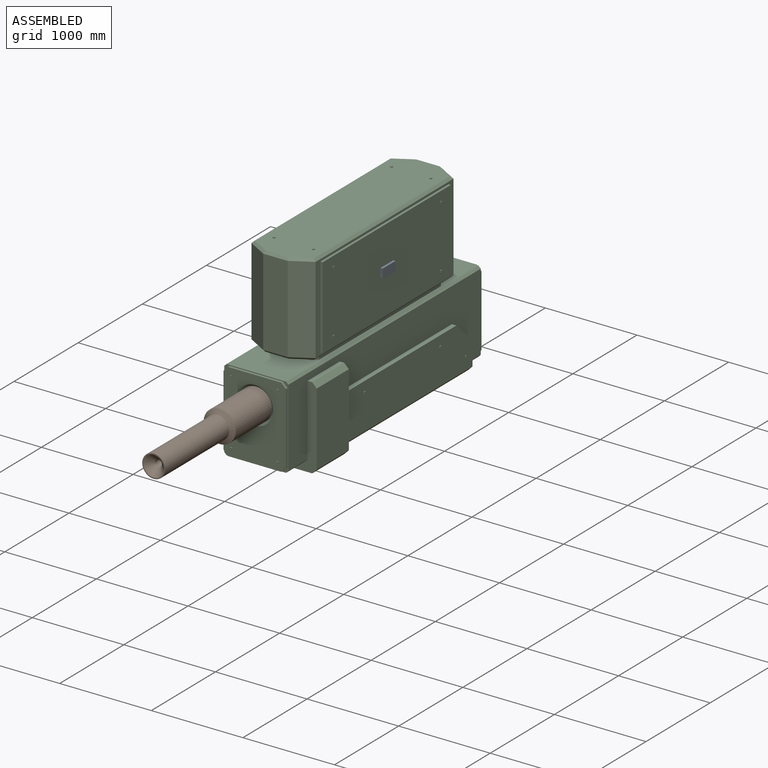
[diagram: assembled view]
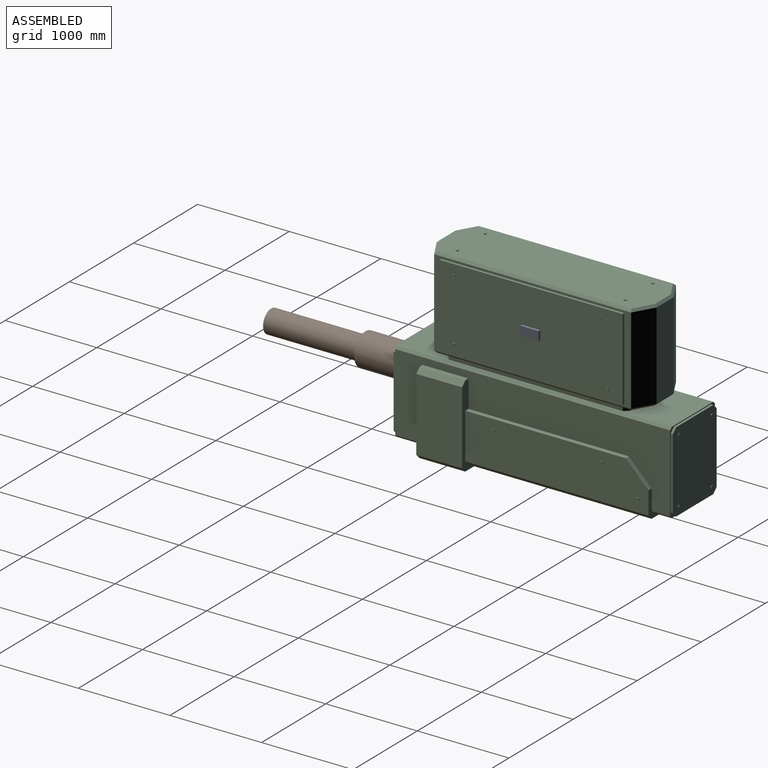
[diagram: assembled view, second angle]
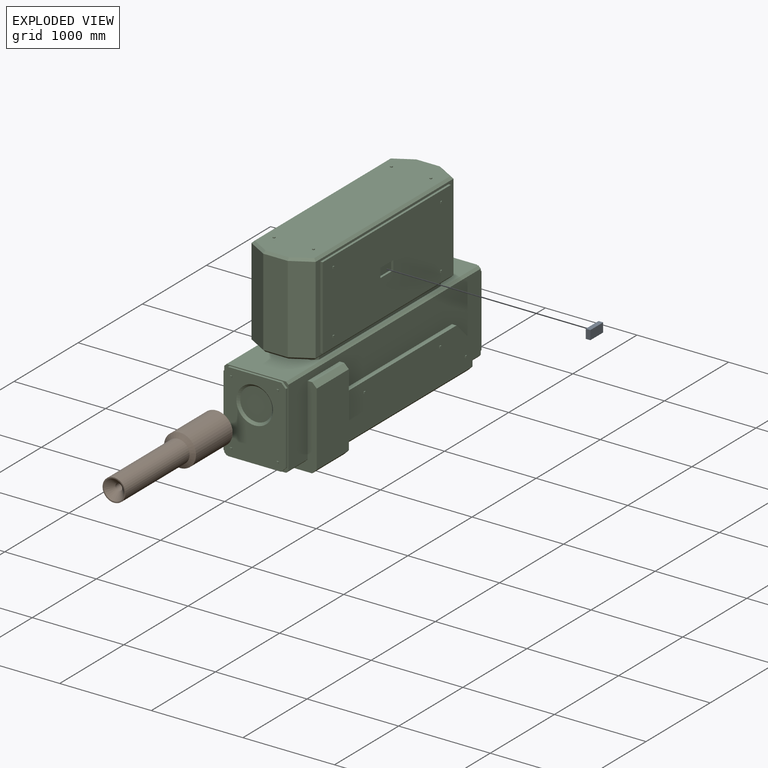
[diagram: exploded view]
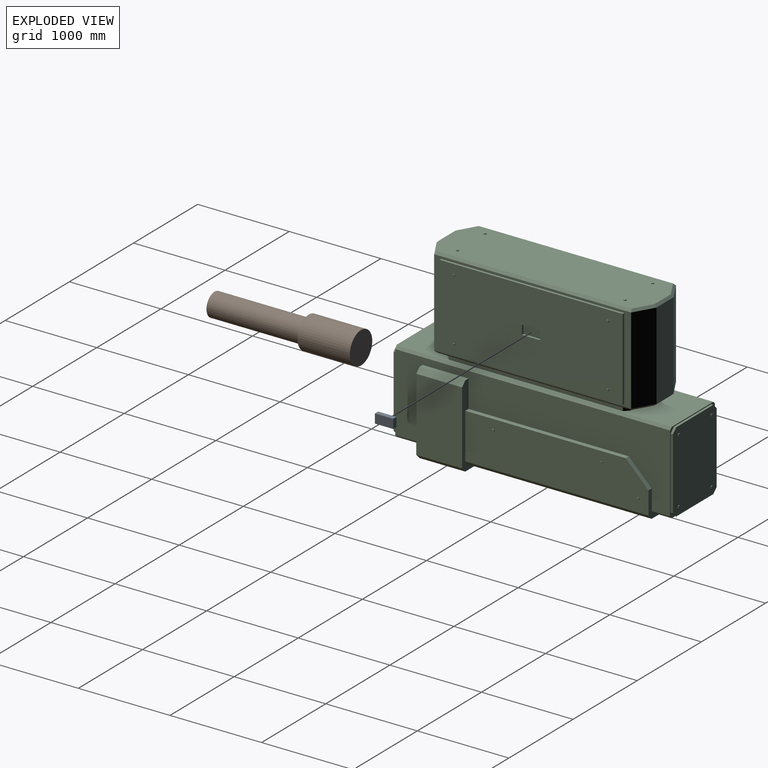
[diagram: exploded view, second angle]
ASSEMBLY  parts=3 mates=2
PART A: 6 faces, bbox 50x200x100 mm
  f0: plane 200x50mm, normal (0,0,1), area 10000mm2, adj f1,f3,f4,f5
  f1: plane 100x50mm, normal (0,-1,0), area 5000mm2, adj f0,f2,f4,f5
  f2: plane 200x50mm, normal (0,0,-1), area 10000mm2, adj f1,f3,f4,f5
  f3: plane 100x50mm, normal (0,1,0), area 5000mm2, adj f0,f2,f4,f5
  f4: plane 200x100mm, normal (1,0,0), area 20000mm2, adj f0,f1,f2,f3
  f5: plane 200x100mm, normal (-1,0,0), area 20000mm2, adj f0,f1,f2,f3
PART B: 8 faces, bbox 350x1600x350 mm
  f0: cylinder r=175mm len=571.13mm, axis (0,1,0), area 627993mm2, adj f1,f4
  f1: plane 350x350mm, normal (0,1,0), area 96211.3mm2, adj f0
  f2: cylinder r=125mm len=1000mm, axis (0,1,0), area 785398.2mm2, adj f3,f4
  f3: plane 250x250mm, normal (0,-1,0), area 9326.6mm2, adj f2,f7
  f4: cone r=125mm half-angle=60deg, axis (0,1,0), area 54414mm2, adj f0,f2
  f5: cylinder r=37.5mm len=425mm, axis (0,-1,0), area 100138.3mm2, adj f6,f7
  f6: plane 75x75mm, normal (0,-1,0), area 4417.9mm2, adj f5
  f7: cone r=37.5mm half-angle=45deg, axis (0,-1,0), area 49982.4mm2, adj f3,f5
PART C: 239 faces, bbox 900x3070x2060 mm
  f0: plane 2000x900mm, normal (1,0,0), area 1778400mm2, adj f145,f146,f147,f148,f149,f150,f151,f152
  f1: plane 900x900mm, normal (0,1,0), area 157500mm2, adj f3,f104,f106,f107,f108,f109,f110,f111
  f2: plane 650x200mm, normal (0,0,-1), area 130000mm2, adj f4,f8,f112,f132
  f3: plane 3000x850mm, normal (-1,0,0), area 1243750mm2, adj f1,f4,f8,f11,f68,f69,f104,f105
  f4: plane 200x25mm, normal (-0.71,0,-0.71), area 7071.1mm2, adj f2,f3,f8,f112
  f5: plane 3000x650mm, normal (0,0,1), area 753000mm2, adj f8,f11,f13,f14,f15,f16,f17,f69
  f6: plane 880x680mm, normal (0,1,0), area 591800mm2, adj f73,f74,f75,f76,f77,f90,f91,f92
  f7: plane 880x680mm, normal (0,-1,0), area 466136.3mm2, adj f70,f71,f72,f78,f79,f80,f81,f82
  f8: plane 900x700mm, normal (0,1,0), area 35350mm2, adj f2,f3,f4,f5,f69,f73,f74,f75
  f9: plane 2350x650mm, normal (0,0,1), area 1480537.3mm2, adj f29,f30,f31,f32,f33,f58,f59,f60
  f10: plane 2000x900mm, normal (-1,0,0), area 1798400mm2, adj f34,f35,f36,f37,f38,f39,f40,f41
  f11: plane 900x700mm, normal (0,-1,0), area 35350mm2, adj f3,f5,f12,f68,f69,f70,f71,f72
  f12: plane 650x300mm, normal (0,0,-1), area 195000mm2, adj f11,f68,f105,f179
  f13: plane 500x60mm, normal (0,1,0), area 26000mm2, adj f5,f16,f18,f100,f103,f134,f207
  f14: plane 1900x50mm, normal (-1,0,0), area 95000mm2, adj f5,f16,f17,f18
  f15: plane 500x60mm, normal (0,-1,0), area 26000mm2, adj f5,f17,f18,f101,f102,f135,f208
  f16: plane 50x50mm, normal (-0.71,0.71,0), area 3535.5mm2, adj f5,f13,f14,f18
  f17: plane 50x50mm, normal (-0.71,-0.71,0), area 3535.5mm2, adj f5,f14,f15,f18
  f18: plane 2350x650mm, normal (0,0,-1), area 287137.3mm2, adj f13,f14,f15,f16,f17,f24,f25,f26
  f19: plane 950x266.99mm, normal (0,1,0), area 253637.9mm2, adj f22,f24,f33,f137
  f20: plane 2150x950mm, normal (-1,0,0), area 242500mm2, adj f22,f23,f27,f31,f34,f35,f36,f37
  f21: plane 950x266.99mm, normal (0,-1,0), area 253637.9mm2, adj f23,f26,f29,f138
  f22: plane 950x216.51mm, normal (-0.5,0.87,0), area 237500mm2, adj f19,f20,f25,f32
  f23: plane 950x216.51mm, normal (-0.5,-0.87,0), area 237500mm2, adj f20,f21,f28,f30
  f24: plane 266.99x25mm, normal (0,0.71,-0.71), area 9202.6mm2, adj f18,f19,f25,f139
  f25: plane 223.21x139.43mm, normal (-0.35,0.61,-0.71), area 8465.3mm2, adj f18,f22,f24,f27
  f26: plane 266.99x25mm, normal (0,-0.71,-0.71), area 9202.6mm2, adj f18,f21,f28,f141
  f27: plane 2150x25mm, normal (-0.71,0,-0.71), area 75503.7mm2, adj f18,f20,f25,f28
  f28: plane 223.21x139.43mm, normal (-0.35,-0.61,-0.71), area 8465.3mm2, adj f18,f23,f26,f27
  f29: plane 266.99x25mm, normal (0,-0.71,0.71), area 9202.6mm2, adj f9,f21,f30,f142
  f30: plane 223.21x139.43mm, normal (-0.35,-0.61,0.71), area 8465.3mm2, adj f9,f23,f29,f31
  f31: plane 2150x25mm, normal (-0.71,0,0.71), area 75503.7mm2, adj f9,f20,f30,f32
  f32: plane 223.21x139.43mm, normal (-0.35,0.61,0.71), area 8465.3mm2, adj f9,f22,f31,f33
  f33: plane 266.99x25mm, normal (0,0.71,0.71), area 9202.6mm2, adj f9,f19,f32,f144
  f34: plane 2000x25mm, normal (0,0,1), area 50000mm2, adj f10,f20,f35,f37
  f35: plane 900x25mm, normal (0,1,0), area 22500mm2, adj f10,f20,f34,f36
  f36: plane 2000x25mm, normal (0,0,-1), area 50000mm2, adj f10,f20,f35,f37
  f37: plane 900x25mm, normal (0,-1,0), area 22500mm2, adj f10,f20,f34,f36
  f38: plane 20x10mm, normal (0,0,1), area 200mm2, adj f10,f39,f41,f42
  f39: plane 20x10mm, normal (0,1,0), area 200mm2, adj f10,f38,f40,f42
  f40: plane 20x10mm, normal (0,0,-1), area 200mm2, adj f10,f39,f41,f42
  f41: plane 20x10mm, normal (0,-1,0), area 200mm2, adj f10,f38,f40,f42
  f42: plane 20x20mm, normal (-1,0,0), area 400mm2, adj f38,f39,f40,f41
  f43: plane 20x10mm, normal (0,0,1), area 200mm2, adj f10,f44,f46,f47
  f44: plane 20x10mm, normal (0,1,0), area 200mm2, adj f10,f43,f45,f47
  f45: plane 20x10mm, normal (0,0,-1), area 200mm2, adj f10,f44,f46,f47
  f46: plane 20x10mm, normal (0,-1,0), area 200mm2, adj f10,f43,f45,f47
  f47: plane 20x20mm, normal (-1,0,0), area 400mm2, adj f43,f44,f45,f46
  f48: plane 20x10mm, normal (0,-1,0), area 200mm2, adj f10,f49,f51,f52
  f49: plane 20x10mm, normal (0,0,1), area 200mm2, adj f10,f48,f50,f52
  f50: plane 20x10mm, normal (0,1,0), area 200mm2, adj f10,f49,f51,f52
  f51: plane 20x10mm, normal (0,0,-1), area 200mm2, adj f10,f48,f50,f52
  f52: plane 20x20mm, normal (-1,0,0), area 400mm2, adj f48,f49,f50,f51
  f53: plane 20x10mm, normal (0,-1,0), area 200mm2, adj f10,f54,f56,f57
  f54: plane 20x10mm, normal (0,0,1), area 200mm2, adj f10,f53,f55,f57
  f55: plane 20x10mm, normal (0,1,0), area 200mm2, adj f10,f54,f56,f57
  f56: plane 20x10mm, normal (0,0,-1), area 200mm2, adj f10,f53,f55,f57
  f57: plane 20x20mm, normal (-1,0,0), area 400mm2, adj f53,f54,f55,f56
  f58: plane 20x10mm, normal (0,1,0), area 200mm2, adj f9,f59,f61,f62
  f59: plane 20x10mm, normal (-1,0,0), area 200mm2, adj f9,f58,f60,f62
  f60: plane 20x10mm, normal (0,-1,0), area 200mm2, adj f9,f59,f61,f62
  f61: plane 20x10mm, normal (1,0,0), area 200mm2, adj f9,f58,f60,f62
  f62: plane 20x20mm, normal (0,0,1), area 400mm2, adj f58,f59,f60,f61
  f63: plane 20x10mm, normal (-1,0,0), area 200mm2, adj f9,f64,f66,f67
  f64: plane 20x10mm, normal (0,-1,0), area 200mm2, adj f9,f63,f65,f67
  f65: plane 20x10mm, normal (1,0,0), area 200mm2, adj f9,f64,f66,f67
  f66: plane 20x10mm, normal (0,1,0), area 200mm2, adj f9,f63,f65,f67
  f67: plane 20x20mm, normal (0,0,1), area 400mm2, adj f63,f64,f65,f66
  f68: plane 300x25mm, normal (-0.71,0,-0.71), area 10606.6mm2, adj f3,f11,f12,f105
  f69: plane 3000x25mm, normal (-0.71,0,0.71), area 106066mm2, adj f3,f5,f8,f11
  f70: plane 780x25mm, normal (-1,0,0), area 19500mm2, adj f7,f11,f78,f79
  f71: plane 580x25mm, normal (0,0,-1), area 14500mm2, adj f7,f11,f78,f185
  f72: plane 580x25mm, normal (0,0,1), area 14500mm2, adj f7,f11,f79,f186
  f73: plane 580x25mm, normal (0,0,1), area 14500mm2, adj f6,f8,f77,f184
  f74: plane 580x25mm, normal (0,0,-1), area 14500mm2, adj f6,f8,f76,f183
  f75: plane 780x25mm, normal (-1,0,0), area 19500mm2, adj f6,f8,f76,f77
  f76: plane 50x50mm, normal (-0.71,0,-0.71), area 1767.8mm2, adj f6,f8,f74,f75
  f77: plane 50x50mm, normal (-0.71,0,0.71), area 1767.8mm2, adj f6,f8,f73,f75
  f78: plane 50x50mm, normal (-0.71,0,-0.71), area 1767.8mm2, adj f7,f11,f70,f71
  f79: plane 50x50mm, normal (-0.71,0,0.71), area 1767.8mm2, adj f7,f11,f70,f72
  f80: plane 20x10mm, normal (0,0,1), area 200mm2, adj f7,f81,f83,f84
  f81: plane 20x10mm, normal (-1,0,0), area 200mm2, adj f7,f80,f82,f84
  f82: plane 20x10mm, normal (0,0,-1), area 200mm2, adj f7,f81,f83,f84
  f83: plane 20x10mm, normal (1,0,0), area 200mm2, adj f7,f80,f82,f84
  f84: plane 20x20mm, normal (0,-1,0), area 400mm2, adj f80,f81,f82,f83
  f85: plane 20x10mm, normal (0,0,1), area 200mm2, adj f7,f86,f88,f89
  f86: plane 20x10mm, normal (-1,0,0), area 200mm2, adj f7,f85,f87,f89
  f87: plane 20x10mm, normal (0,0,-1), area 200mm2, adj f7,f86,f88,f89
  f88: plane 20x10mm, normal (1,0,0), area 200mm2, adj f7,f85,f87,f89
  f89: plane 20x20mm, normal (0,-1,0), area 400mm2, adj f85,f86,f87,f88
  f90: plane 20x10mm, normal (0,0,1), area 200mm2, adj f6,f91,f93,f94
  f91: plane 20x10mm, normal (1,0,0), area 200mm2, adj f6,f90,f92,f94
  f92: plane 20x10mm, normal (0,0,-1), area 200mm2, adj f6,f91,f93,f94
  f93: plane 20x10mm, normal (-1,0,0), area 200mm2, adj f6,f90,f92,f94
  f94: plane 20x20mm, normal (0,1,0), area 400mm2, adj f90,f91,f92,f93
  f95: plane 20x10mm, normal (0,0,1), area 200mm2, adj f6,f96,f98,f99
  f96: plane 20x10mm, normal (1,0,0), area 200mm2, adj f6,f95,f97,f99
  f97: plane 20x10mm, normal (0,0,-1), area 200mm2, adj f6,f96,f98,f99
  f98: plane 20x10mm, normal (-1,0,0), area 200mm2, adj f6,f95,f97,f99
  f99: plane 20x20mm, normal (0,1,0), area 400mm2, adj f95,f96,f97,f98
  f100: plane 10x10mm, normal (1,0,0), area 50mm2, adj f5,f13,f103
  f101: plane 10x10mm, normal (1,0,0), area 50mm2, adj f5,f15,f102
  f102: plane 100x10mm, normal (0,0.71,0.71), area 1414.2mm2, adj f5,f15,f101,f208
  f103: plane 100x10mm, normal (0,-0.71,0.71), area 1414.2mm2, adj f5,f13,f100,f207
  f104: plane 500x50mm, normal (0,0,1), area 25000mm2, adj f1,f3,f105,f109
  f105: plane 900x900mm, normal (0,-1,0), area 245625mm2, adj f3,f12,f68,f104,f106,f107,f108,f109
  f106: plane 800x500mm, normal (0,0,-1), area 400000mm2, adj f1,f105,f108,f211
  f107: plane 800x500mm, normal (-1,0,0), area 400000mm2, adj f1,f105,f108,f109
  f108: plane 500x50mm, normal (-0.71,0,-0.71), area 35355.3mm2, adj f1,f105,f106,f107
  f109: plane 500x50mm, normal (-0.71,0,0.71), area 35355.3mm2, adj f1,f104,f105,f107
  f110: plane 1750x50mm, normal (0,0,1), area 87500mm2, adj f1,f3,f113,f115
  f111: plane 2000x700mm, normal (0,0,-1), area 1400000mm2, adj f1,f112,f114,f215
  f112: plane 800x300mm, normal (0,1,0), area 63125mm2, adj f2,f3,f4,f111,f113,f114,f115,f131
  f113: plane 2000x500mm, normal (-1,0,0), area 967550mm2, adj f1,f110,f112,f114,f115,f116,f117,f118
  f114: plane 2000x50mm, normal (-0.71,0,-0.71), area 141421.4mm2, adj f1,f111,f112,f113
  f115: plane 250x250mm, normal (0,0.71,0.71), area 17677.7mm2, adj f3,f110,f112,f113
  f116: plane 20x10mm, normal (0,0,1), area 200mm2, adj f113,f117,f119,f120
  f117: plane 20x10mm, normal (0,1,0), area 200mm2, adj f113,f116,f118,f120
  f118: plane 20x10mm, normal (0,0,-1), area 200mm2, adj f113,f117,f119,f120
  f119: plane 20x10mm, normal (0,-1,0), area 200mm2, adj f113,f116,f118,f120
  f120: plane 20x20mm, normal (-1,0,0), area 400mm2, adj f116,f117,f118,f119
  f121: plane 20x10mm, normal (0,-1,0), area 200mm2, adj f113,f122,f124,f125
  f122: plane 20x10mm, normal (0,0,1), area 200mm2, adj f113,f121,f123,f125
  f123: plane 20x10mm, normal (0,1,0), area 200mm2, adj f113,f122,f124,f125
  f124: plane 20x10mm, normal (0,0,-1), area 200mm2, adj f113,f121,f123,f125
  f125: plane 20x20mm, normal (-1,0,0), area 400mm2, adj f121,f122,f123,f124
  f126: plane 20x10mm, normal (0,0,1), area 200mm2, adj f113,f127,f129,f130
  f127: plane 20x10mm, normal (0,1,0), area 200mm2, adj f113,f126,f128,f130
  f128: plane 20x10mm, normal (0,0,-1), area 200mm2, adj f113,f127,f129,f130
  f129: plane 20x10mm, normal (0,-1,0), area 200mm2, adj f113,f126,f128,f130
  f130: plane 20x20mm, normal (-1,0,0), area 400mm2, adj f126,f127,f128,f129
  f131: plane 3000x850mm, normal (1,0,0), area 1243750mm2, adj f1,f8,f11,f105,f112,f132,f179,f180
  f132: plane 200x25mm, normal (0.71,0,-0.71), area 7071.1mm2, adj f2,f8,f112,f131
  f133: plane 1900x50mm, normal (1,0,0), area 95000mm2, adj f5,f18,f134,f135
  f134: plane 50x50mm, normal (0.71,0.71,0), area 3535.5mm2, adj f5,f13,f18,f133
  f135: plane 50x50mm, normal (0.71,-0.71,0), area 3535.5mm2, adj f5,f15,f18,f133
  f136: plane 2150x950mm, normal (1,0,0), area 242500mm2, adj f137,f138,f140,f143,f145,f146,f147,f148
  f137: plane 950x216.51mm, normal (0.5,0.87,0), area 237500mm2, adj f19,f136,f139,f144
  f138: plane 950x216.51mm, normal (0.5,-0.87,0), area 237500mm2, adj f21,f136,f141,f142
  f139: plane 223.21x139.43mm, normal (0.35,0.61,-0.71), area 8465.3mm2, adj f18,f24,f137,f140
  f140: plane 2150x25mm, normal (0.71,0,-0.71), area 75503.7mm2, adj f18,f136,f139,f141
  f141: plane 223.21x139.43mm, normal (0.35,-0.61,-0.71), area 8465.3mm2, adj f18,f26,f138,f140
  f142: plane 223.21x139.43mm, normal (0.35,-0.61,0.71), area 8465.3mm2, adj f9,f29,f138,f143
  f143: plane 2150x25mm, normal (0.71,0,0.71), area 75503.7mm2, adj f9,f136,f142,f144
  f144: plane 223.21x139.43mm, normal (0.35,0.61,0.71), area 8465.3mm2, adj f9,f33,f137,f143
  f145: plane 2000x25mm, normal (0,0,1), area 50000mm2, adj f0,f136,f146,f148
  f146: plane 900x25mm, normal (0,1,0), area 22500mm2, adj f0,f136,f145,f147
  f147: plane 2000x25mm, normal (0,0,-1), area 50000mm2, adj f0,f136,f146,f148
  f148: plane 900x25mm, normal (0,-1,0), area 22500mm2, adj f0,f136,f145,f147
  f149: plane 20x10mm, normal (0,0,1), area 200mm2, adj f0,f150,f152,f153
  f150: plane 20x10mm, normal (0,1,0), area 200mm2, adj f0,f149,f151,f153
  f151: plane 20x10mm, normal (0,0,-1), area 200mm2, adj f0,f150,f152,f153
  f152: plane 20x10mm, normal (0,-1,0), area 200mm2, adj f0,f149,f151,f153
  f153: plane 20x20mm, normal (1,0,0), area 400mm2, adj f149,f150,f151,f152
  f154: plane 20x10mm, normal (0,0,1), area 200mm2, adj f0,f155,f157,f158
  f155: plane 20x10mm, normal (0,1,0), area 200mm2, adj f0,f154,f156,f158
  f156: plane 20x10mm, normal (0,0,-1), area 200mm2, adj f0,f155,f157,f158
  f157: plane 20x10mm, normal (0,-1,0), area 200mm2, adj f0,f154,f156,f158
  f158: plane 20x20mm, normal (1,0,0), area 400mm2, adj f154,f155,f156,f157
  f159: plane 20x10mm, normal (0,-1,0), area 200mm2, adj f0,f160,f162,f163
  f160: plane 20x10mm, normal (0,0,1), area 200mm2, adj f0,f159,f161,f163
  f161: plane 20x10mm, normal (0,1,0), area 200mm2, adj f0,f160,f162,f163
  f162: plane 20x10mm, normal (0,0,-1), area 200mm2, adj f0,f159,f161,f163
  f163: plane 20x20mm, normal (1,0,0), area 400mm2, adj f159,f160,f161,f162
  f164: plane 20x10mm, normal (0,-1,0), area 200mm2, adj f0,f165,f167,f168
  f165: plane 20x10mm, normal (0,0,1), area 200mm2, adj f0,f164,f166,f168
  f166: plane 20x10mm, normal (0,1,0), area 200mm2, adj f0,f165,f167,f168
  f167: plane 20x10mm, normal (0,0,-1), area 200mm2, adj f0,f164,f166,f168
  f168: plane 20x20mm, normal (1,0,0), area 400mm2, adj f164,f165,f166,f167
  f169: plane 20x10mm, normal (0,1,0), area 200mm2, adj f9,f170,f172,f173
  f170: plane 20x10mm, normal (1,0,0), area 200mm2, adj f9,f169,f171,f173
  f171: plane 20x10mm, normal (0,-1,0), area 200mm2, adj f9,f170,f172,f173
  f172: plane 20x10mm, normal (-1,0,0), area 200mm2, adj f9,f169,f171,f173
  f173: plane 20x20mm, normal (0,0,1), area 400mm2, adj f169,f170,f171,f172
  f174: plane 20x10mm, normal (1,0,0), area 200mm2, adj f9,f175,f177,f178
  f175: plane 20x10mm, normal (0,-1,0), area 200mm2, adj f9,f174,f176,f178
  f176: plane 20x10mm, normal (-1,0,0), area 200mm2, adj f9,f175,f177,f178
  f177: plane 20x10mm, normal (0,1,0), area 200mm2, adj f9,f174,f176,f178
  f178: plane 20x20mm, normal (0,0,1), area 400mm2, adj f174,f175,f176,f177
  f179: plane 300x25mm, normal (0.71,0,-0.71), area 10606.6mm2, adj f11,f12,f105,f131
  f180: plane 3000x25mm, normal (0.71,0,0.71), area 106066mm2, adj f5,f8,f11,f131
  f181: plane 780x25mm, normal (1,0,0), area 19500mm2, adj f7,f11,f185,f186
  f182: plane 780x25mm, normal (1,0,0), area 19500mm2, adj f6,f8,f183,f184
  f183: plane 50x50mm, normal (0.71,0,-0.71), area 1767.8mm2, adj f6,f8,f74,f182
  f184: plane 50x50mm, normal (0.71,0,0.71), area 1767.8mm2, adj f6,f8,f73,f182
  f185: plane 50x50mm, normal (0.71,0,-0.71), area 1767.8mm2, adj f7,f11,f71,f181
  f186: plane 50x50mm, normal (0.71,0,0.71), area 1767.8mm2, adj f7,f11,f72,f181
  f187: plane 20x10mm, normal (0,0,1), area 200mm2, adj f7,f188,f190,f191
  f188: plane 20x10mm, normal (1,0,0), area 200mm2, adj f7,f187,f189,f191
  f189: plane 20x10mm, normal (0,0,-1), area 200mm2, adj f7,f188,f190,f191
  f190: plane 20x10mm, normal (-1,0,0), area 200mm2, adj f7,f187,f189,f191
  f191: plane 20x20mm, normal (0,-1,0), area 400mm2, adj f187,f188,f189,f190
  f192: plane 20x10mm, normal (0,0,1), area 200mm2, adj f7,f193,f195,f196
  f193: plane 20x10mm, normal (1,0,0), area 200mm2, adj f7,f192,f194,f196
  f194: plane 20x10mm, normal (0,0,-1), area 200mm2, adj f7,f193,f195,f196
  f195: plane 20x10mm, normal (-1,0,0), area 200mm2, adj f7,f192,f194,f196
  f196: plane 20x20mm, normal (0,-1,0), area 400mm2, adj f192,f193,f194,f195
  f197: plane 20x10mm, normal (0,0,1), area 200mm2, adj f6,f198,f200,f201
  f198: plane 20x10mm, normal (-1,0,0), area 200mm2, adj f6,f197,f199,f201
  f199: plane 20x10mm, normal (0,0,-1), area 200mm2, adj f6,f198,f200,f201
  f200: plane 20x10mm, normal (1,0,0), area 200mm2, adj f6,f197,f199,f201
  f201: plane 20x20mm, normal (0,1,0), area 400mm2, adj f197,f198,f199,f200
  f202: plane 20x10mm, normal (0,0,1), area 200mm2, adj f6,f203,f205,f206
  f203: plane 20x10mm, normal (-1,0,0), area 200mm2, adj f6,f202,f204,f206
  f204: plane 20x10mm, normal (0,0,-1), area 200mm2, adj f6,f203,f205,f206
  f205: plane 20x10mm, normal (1,0,0), area 200mm2, adj f6,f202,f204,f206
  f206: plane 20x20mm, normal (0,1,0), area 400mm2, adj f202,f203,f204,f205
  f207: plane 10x10mm, normal (-1,0,0), area 50mm2, adj f5,f13,f103
  f208: plane 10x10mm, normal (-1,0,0), area 50mm2, adj f5,f15,f102
  f209: plane 500x50mm, normal (0,0,1), area 25000mm2, adj f1,f105,f131,f212
  f210: plane 800x500mm, normal (1,0,0), area 400000mm2, adj f1,f105,f211,f212
  f211: plane 500x50mm, normal (0.71,0,-0.71), area 35355.3mm2, adj f1,f105,f106,f210
  f212: plane 500x50mm, normal (0.71,0,0.71), area 35355.3mm2, adj f1,f105,f209,f210
  f213: plane 1750x50mm, normal (0,0,1), area 87500mm2, adj f1,f131,f214,f216
  f214: plane 2000x500mm, normal (1,0,0), area 967550mm2, adj f1,f112,f213,f215,f216,f217,f218,f219
  f215: plane 2000x50mm, normal (0.71,0,-0.71), area 141421.4mm2, adj f1,f111,f112,f214
  f216: plane 250x250mm, normal (0,0.71,0.71), area 17677.7mm2, adj f112,f131,f213,f214
  f217: plane 20x10mm, normal (0,0,1), area 200mm2, adj f214,f218,f220,f221
  f218: plane 20x10mm, normal (0,1,0), area 200mm2, adj f214,f217,f219,f221
  f219: plane 20x10mm, normal (0,0,-1), area 200mm2, adj f214,f218,f220,f221
  f220: plane 20x10mm, normal (0,-1,0), area 200mm2, adj f214,f217,f219,f221
  f221: plane 20x20mm, normal (1,0,0), area 400mm2, adj f217,f218,f219,f220
  f222: plane 20x10mm, normal (0,-1,0), area 200mm2, adj f214,f223,f225,f226
  f223: plane 20x10mm, normal (0,0,1), area 200mm2, adj f214,f222,f224,f226
  f224: plane 20x10mm, normal (0,1,0), area 200mm2, adj f214,f223,f225,f226
  f225: plane 20x10mm, normal (0,0,-1), area 200mm2, adj f214,f222,f224,f226
  f226: plane 20x20mm, normal (1,0,0), area 400mm2, adj f222,f223,f224,f225
  f227: plane 20x10mm, normal (0,0,1), area 200mm2, adj f214,f228,f230,f231
  f228: plane 20x10mm, normal (0,1,0), area 200mm2, adj f214,f227,f229,f231
  f229: plane 20x10mm, normal (0,0,-1), area 200mm2, adj f214,f228,f230,f231
  f230: plane 20x10mm, normal (0,-1,0), area 200mm2, adj f214,f227,f229,f231
  f231: plane 20x20mm, normal (1,0,0), area 400mm2, adj f227,f228,f229,f230
  f232: plane 350x350mm, normal (0,-1,0), area 96211.3mm2, adj f233
  f233: cone r=175mm half-angle=45deg, axis (0,-1,0), area 41652mm2, adj f7,f232
  f234: plane 200x25mm, normal (0,0,-1), area 5000mm2, adj f0,f235,f237,f238
  f235: plane 100x25mm, normal (0,1,0), area 2500mm2, adj f0,f234,f236,f238
  f236: plane 200x25mm, normal (0,0,1), area 5000mm2, adj f0,f235,f237,f238
  f237: plane 100x25mm, normal (0,-1,0), area 2500mm2, adj f0,f234,f236,f238
  f238: plane 200x100mm, normal (1,0,0), area 20000mm2, adj f234,f235,f236,f237
PLACE A t=(-4.71,-1500,-922.49)mm
PLACE B t=(-4.71,-1500,-922.49)mm
PLACE C t=(-4.71,-1500,-922.49)mm
MATE fastened B.f0 <-> C.f233  axis (0,1,0) through (-4.71,-1500,-332.49)mm
MATE fastened A.f5 <-> C.f238  axis (-1,0,0) through (345.29,0,527.51)mm
